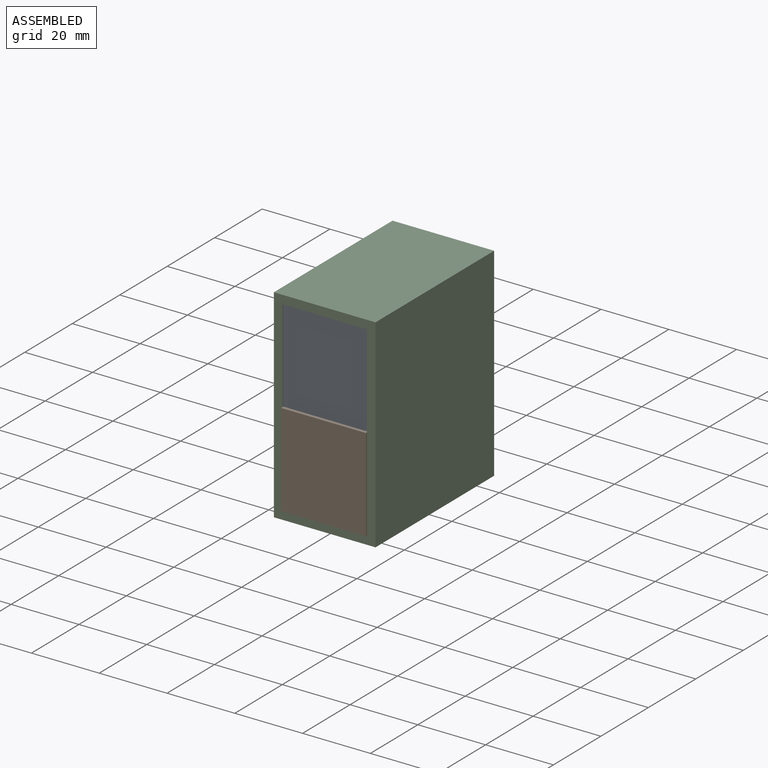
[diagram: assembled view]
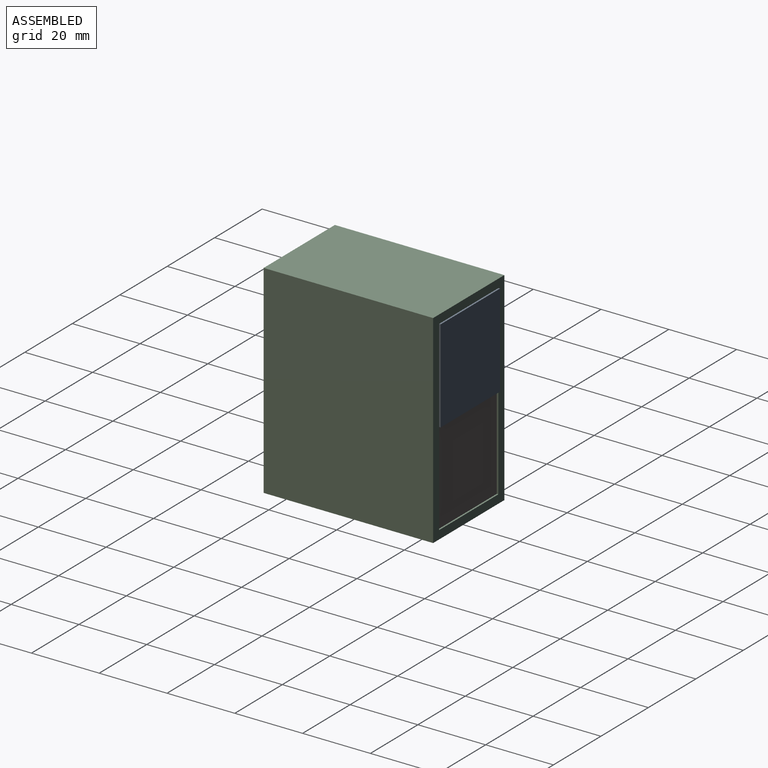
[diagram: assembled view, second angle]
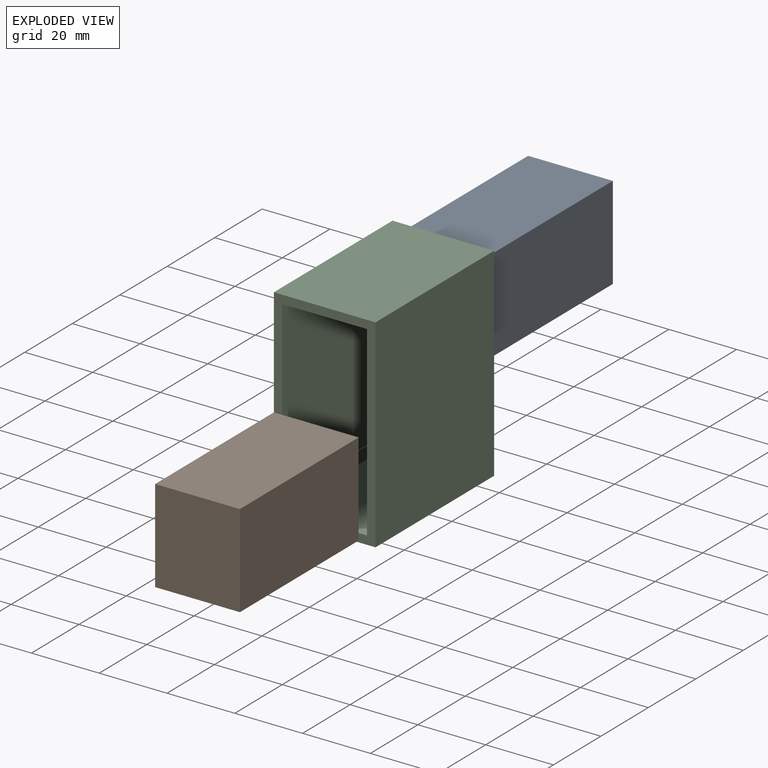
[diagram: exploded view]
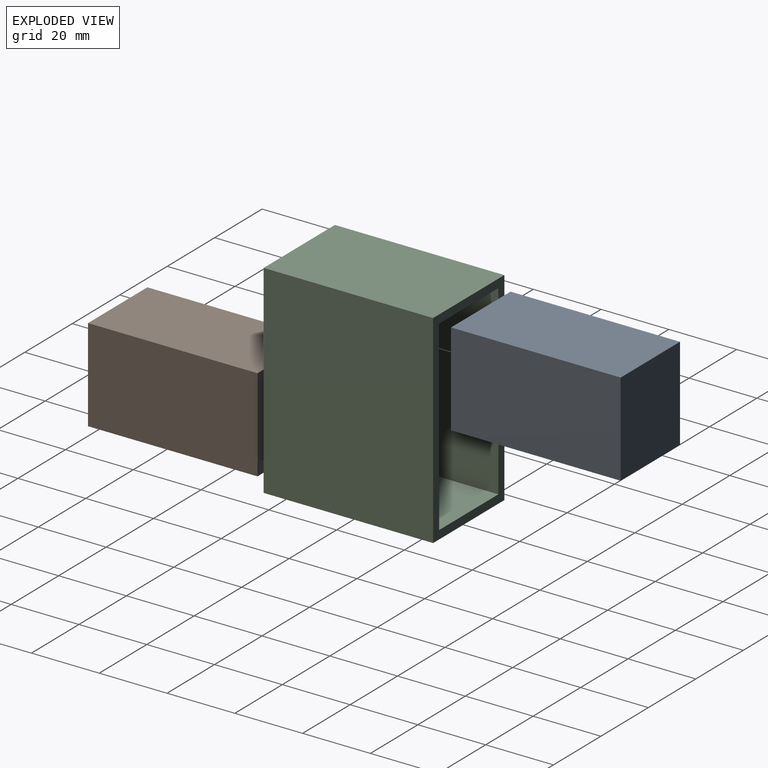
[diagram: exploded view, second angle]
ASSEMBLY  parts=3 mates=2
PART A: 6 faces, bbox 25x50x27.5 mm
  f0: plane 50x25mm, normal (0,0,1), area 1250mm2, adj f1,f3,f4,f5
  f1: plane 50x27.5mm, normal (-1,0,0), area 1375mm2, adj f0,f2,f4,f5
  f2: plane 50x25mm, normal (0,0,-1), area 1250mm2, adj f1,f3,f4,f5
  f3: plane 50x27.5mm, normal (1,0,0), area 1375mm2, adj f0,f2,f4,f5
  f4: plane 27.5x25mm, normal (0,-1,0), area 687.5mm2, adj f0,f1,f2,f3
  f5: plane 27.5x25mm, normal (0,1,0), area 687.5mm2, adj f0,f1,f2,f3
PART B: same geometry as A
PART C: 10 faces, bbox 30x50x60 mm
  f0: plane 60x30mm, normal (0,1,0), area 425mm2, adj f2,f3,f4,f5,f6,f7,f8,f9
  f1: plane 60x30mm, normal (0,-1,0), area 425mm2, adj f2,f3,f4,f5,f6,f7,f8,f9
  f2: plane 60x50mm, normal (1,0,0), area 3000mm2, adj f0,f1,f4,f5
  f3: plane 60x50mm, normal (-1,0,0), area 3000mm2, adj f0,f1,f4,f5
  f4: plane 50x30mm, normal (0,0,1), area 1500mm2, adj f0,f1,f2,f3
  f5: plane 50x30mm, normal (0,0,-1), area 1500mm2, adj f0,f1,f2,f3
  f6: plane 55x50mm, normal (-1,0,0), area 2750mm2, adj f0,f1,f8,f9
  f7: plane 55x50mm, normal (1,0,0), area 2750mm2, adj f0,f1,f8,f9
  f8: plane 50x25mm, normal (0,0,-1), area 1250mm2, adj f0,f1,f6,f7
  f9: plane 50x25mm, normal (0,0,1), area 1250mm2, adj f0,f1,f6,f7
PLACE A t=(0,50.47,27.5)mm
PLACE B t=(0,49.53,0)mm
PLACE C at identity fixed
MATE slider C.f1 <-> B.f4  axis (0,-1,0) through (-12.5,-25,2.5)mm
MATE slider C.f1 <-> A.f4  axis (0,-1,0) through (-12.5,-25,57.5)mm
